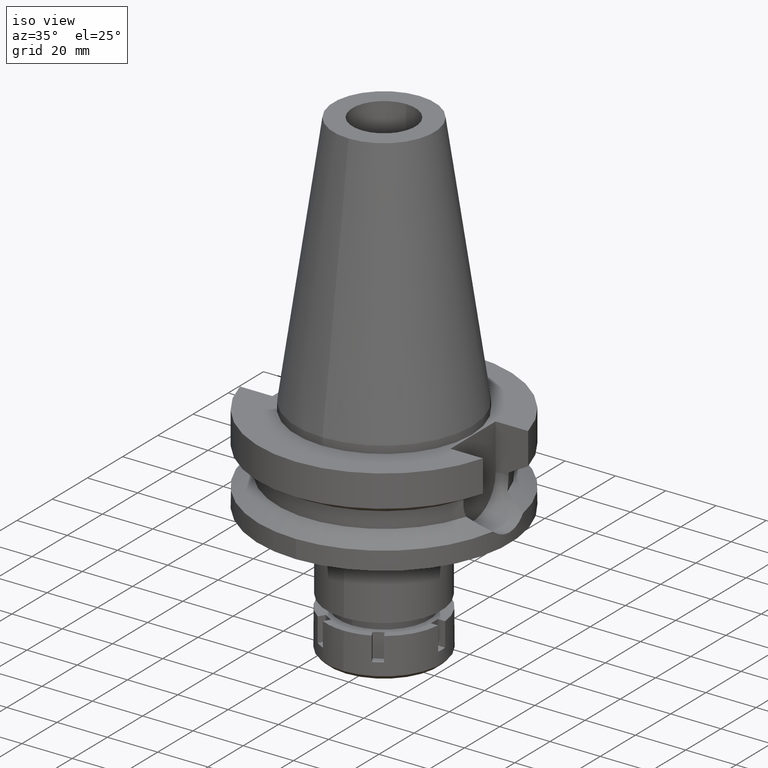
[diagram: clean part render]
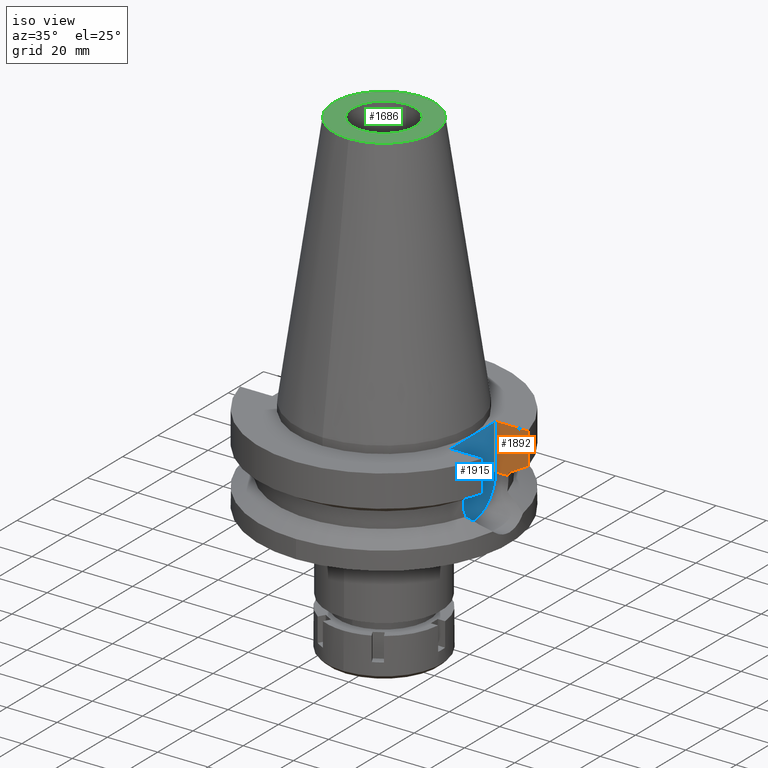
[diagram: same view with three faces highlighted in distinct colors, each labeled with its STEP entity id]
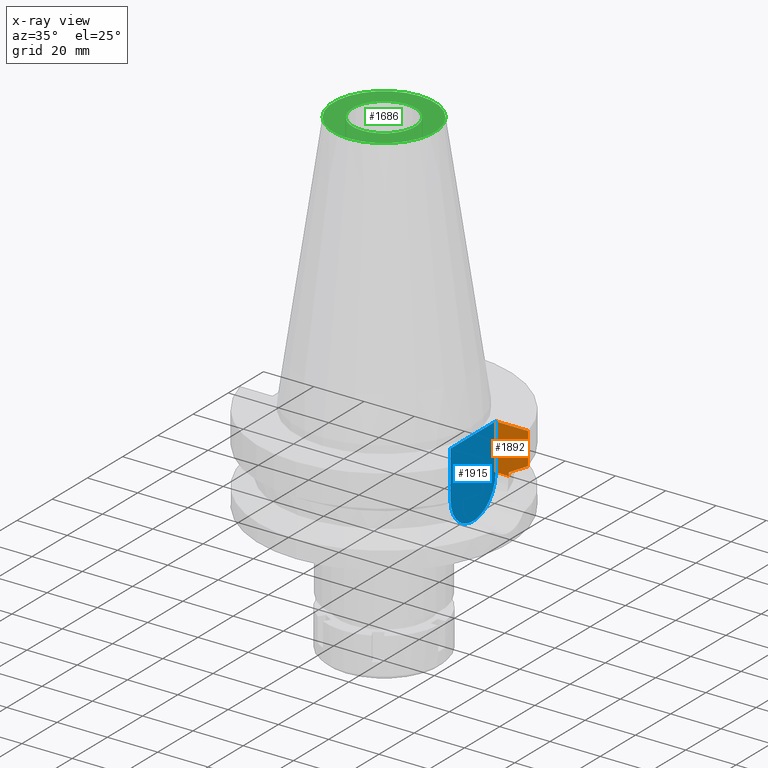
[diagram: x-ray of the same camera — body ghosted, the three highlighted faces saturated]
A machine part, iso view with three faces highlighted in distinct colors.
The next image is the same camera in x-ray (body ghosted, the three faces saturated) — at least one of them is partly hidden behind the body in this view.
Their STEP definitions:

[orange] entity #1892 — the highlighted planar face has unit normal (0, 1, 0).
#23 = CARTESIAN_POINT ( 'NONE',  ( 40.51083188481999997, 12.84999999999999964, -21.14999999999999858 ) ) ;
#275 = LINE ( 'NONE', #2506, #2781 ) ;
#347 = DIRECTION ( 'NONE',  ( 0.0000000000000000000, 0.0000000000000000000, -1.000000000000000000 ) ) ;
#448 = CARTESIAN_POINT ( 'NONE',  ( 48.32057015392000210, 12.84999999999999964, -3.000000000000000000 ) ) ;
#482 = LINE ( 'NONE', #2731, #3072 ) ;
#519 = VECTOR ( 'NONE', #347, 1000.000000000000000 ) ;
#537 = AXIS2_PLACEMENT_3D ( 'NONE', #2630, #640, #954 ) ;
#635 = VERTEX_POINT ( 'NONE', #926 ) ;
#640 = DIRECTION ( 'NONE',  ( -0.0000000000000000000, 1.000000000000000000, 0.0000000000000000000 ) ) ;
#834 = VECTOR ( 'NONE', #2451, 1000.000000000000000 ) ;
#900 = CARTESIAN_POINT ( 'NONE',  ( 45.51179786140243522, 12.85000766709870135, -17.22986770917934152 ) ) ;
#926 = CARTESIAN_POINT ( 'NONE',  ( 40.51083188481999997, 12.84999999999999964, -21.14999999999999858 ) ) ;
#954 = DIRECTION ( 'NONE',  ( 1.000000000000000000, 0.0000000000000000000, 0.0000000000000000000 ) ) ;
#1012 = VECTOR ( 'NONE', #2806, 1000.000000000000000 ) ;
#1312 = ORIENTED_EDGE ( 'NONE', *, *, #1734, .T. ) ;
#1354 = EDGE_LOOP ( 'NONE', ( #2662, #3567, #2334, #1426, #1312, #2218 ) ) ;
#1426 = ORIENTED_EDGE ( 'NONE', *, *, #3443, .T. ) ;
#1499 = LINE ( 'NONE', #2649, #519 ) ;
#1535 = VERTEX_POINT ( 'NONE', #448 ) ;
#1619 = B_SPLINE_CURVE_WITH_KNOTS ( 'NONE', 3,
 ( #1741, #900, #3123, #2107 ),
 .UNSPECIFIED., .F., .F.,
 ( 4, 4 ),
 ( 0.0000000000000000000, 1.000000000000000000 ),
 .UNSPECIFIED. ) ;
#1699 = VERTEX_POINT ( 'NONE', #3579 ) ;
#1734 = EDGE_CURVE ( 'NONE', #1753, #635, #3545, .T. ) ;
#1741 = CARTESIAN_POINT ( 'NONE',  ( 48.32056913384000296, 12.85000383585999906, -15.66265787441999890 ) ) ;
#1753 = VERTEX_POINT ( 'NONE', #3563 ) ;
#1892 = ADVANCED_FACE ( 'NONE', ( #3202 ), #2007, .F. ) ;
#1952 = VERTEX_POINT ( 'NONE', #2327 ) ;
#2007 = PLANE ( 'NONE',  #537 ) ;
#2107 = CARTESIAN_POINT ( 'NONE',  ( 40.51083300056000525, 12.84999648251999993, -19.99284624891000206 ) ) ;
#2110 = EDGE_CURVE ( 'NONE', #1952, #1535, #482, .T. ) ;
#2218 = ORIENTED_EDGE ( 'NONE', *, *, #2792, .T. ) ;
#2257 = EDGE_CURVE ( 'NONE', #1699, #1535, #275, .T. ) ;
#2327 = CARTESIAN_POINT ( 'NONE',  ( 48.32056913384000296, 12.85000383585999906, -15.66265787441999890 ) ) ;
#2334 = ORIENTED_EDGE ( 'NONE', *, *, #2257, .F. ) ;
#2338 = EDGE_CURVE ( 'NONE', #1952, #3325, #1619, .T. ) ;
#2451 = DIRECTION ( 'NONE',  ( 1.000000000000000000, -3.336643826789999529E-14, 0.0000000000000000000 ) ) ;
#2481 = CARTESIAN_POINT ( 'NONE',  ( 35.39999999999999858, 12.84999999999999964, -21.14999999999999858 ) ) ;
#2506 = CARTESIAN_POINT ( 'NONE',  ( 35.39999999999999858, 12.84999999999999964, -3.000000000000000000 ) ) ;
#2513 = LINE ( 'NONE', #23, #1012 ) ;
#2595 = CARTESIAN_POINT ( 'NONE',  ( 40.51083300056000525, 12.84999648251999993, -19.99284624891000206 ) ) ;
#2630 = CARTESIAN_POINT ( 'NONE',  ( 35.39999999999999858, 12.84999999999999964, -21.14999999999999858 ) ) ;
#2649 = CARTESIAN_POINT ( 'NONE',  ( 35.39999999999999858, 12.84999999999999964, -3.000000000000000000 ) ) ;
#2662 = ORIENTED_EDGE ( 'NONE', *, *, #2338, .F. ) ;
#2731 = CARTESIAN_POINT ( 'NONE',  ( 48.32056913384000296, 12.85000383585999906, -15.66265787441999890 ) ) ;
#2781 = VECTOR ( 'NONE', #3354, 1000.000000000000000 ) ;
#2792 = EDGE_CURVE ( 'NONE', #635, #3325, #2513, .T. ) ;
#2806 = DIRECTION ( 'NONE',  ( 9.642122151655148610E-07, -3.039772167059045013E-06, 0.9999999999949150675 ) ) ;
#3072 = VECTOR ( 'NONE', #3243, 1000.000000000000114 ) ;
#3123 = CARTESIAN_POINT ( 'NONE',  ( 42.90862369218401540, 12.84999295787632256, -18.67324849511757634 ) ) ;
#3202 = FACE_OUTER_BOUND ( 'NONE', #1354, .T. ) ;
#3243 = DIRECTION ( 'NONE',  ( 8.055814647628599031E-08, -3.029270867165849940E-07, 0.9999999999999509281 ) ) ;
#3325 = VERTEX_POINT ( 'NONE', #2595 ) ;
#3354 = DIRECTION ( 'NONE',  ( 1.000000000000000000, 0.0000000000000000000, 0.0000000000000000000 ) ) ;
#3443 = EDGE_CURVE ( 'NONE', #1699, #1753, #1499, .T. ) ;
#3545 = LINE ( 'NONE', #2481, #834 ) ;
#3563 = CARTESIAN_POINT ( 'NONE',  ( 35.39999999999999858, 12.84999999999999964, -21.14999999999999858 ) ) ;
#3567 = ORIENTED_EDGE ( 'NONE', *, *, #2110, .T. ) ;
#3579 = CARTESIAN_POINT ( 'NONE',  ( 35.39999999999999858, 12.84999999999999964, -3.000000000000000000 ) ) ;

[blue] entity #1915 — the highlighted planar face has unit normal (1, 0, 0).
#148 = DIRECTION ( 'NONE',  ( 0.0000000000000000000, 1.000000000000000000, 0.0000000000000000000 ) ) ;
#167 = VERTEX_POINT ( 'NONE', #2109 ) ;
#347 = DIRECTION ( 'NONE',  ( 0.0000000000000000000, 0.0000000000000000000, -1.000000000000000000 ) ) ;
#380 = DIRECTION ( 'NONE',  ( 0.0000000000000000000, 0.0000000000000000000, 1.000000000000000000 ) ) ;
#519 = VECTOR ( 'NONE', #347, 1000.000000000000000 ) ;
#601 = DIRECTION ( 'NONE',  ( 0.0000000000000000000, -1.000000000000000000, 0.0000000000000000000 ) ) ;
#625 = PLANE ( 'NONE',  #3122 ) ;
#663 = DIRECTION ( 'NONE',  ( 0.0000000000000000000, 1.000000000000000000, 0.0000000000000000000 ) ) ;
#682 = DIRECTION ( 'NONE',  ( -1.000000000000000000, 0.0000000000000000000, 0.0000000000000000000 ) ) ;
#908 = ORIENTED_EDGE ( 'NONE', *, *, #3443, .F. ) ;
#938 = EDGE_CURVE ( 'NONE', #1753, #1095, #2486, .T. ) ;
#1095 = VERTEX_POINT ( 'NONE', #3028 ) ;
#1164 = LINE ( 'NONE', #1525, #1242 ) ;
#1169 = DIRECTION ( 'NONE',  ( 1.000000000000000000, 0.0000000000000000000, 0.0000000000000000000 ) ) ;
#1242 = VECTOR ( 'NONE', #601, 1000.000000000000000 ) ;
#1494 = EDGE_CURVE ( 'NONE', #1095, #167, #3167, .T. ) ;
#1499 = LINE ( 'NONE', #2649, #519 ) ;
#1525 = CARTESIAN_POINT ( 'NONE',  ( 35.39999999999999858, 12.84999999999999964, -3.000000000000000000 ) ) ;
#1616 = ORIENTED_EDGE ( 'NONE', *, *, #2386, .T. ) ;
#1699 = VERTEX_POINT ( 'NONE', #3579 ) ;
#1753 = VERTEX_POINT ( 'NONE', #3563 ) ;
#1765 = FACE_OUTER_BOUND ( 'NONE', #1854, .T. ) ;
#1854 = EDGE_LOOP ( 'NONE', ( #3370, #2000, #908, #1616 ) ) ;
#1915 = ADVANCED_FACE ( 'NONE', ( #1765 ), #625, .T. ) ;
#2000 = ORIENTED_EDGE ( 'NONE', *, *, #938, .F. ) ;
#2084 = CARTESIAN_POINT ( 'NONE',  ( 35.39999999999999858, 0.0000000000000000000, -21.14999999999999858 ) ) ;
#2109 = CARTESIAN_POINT ( 'NONE',  ( 35.39999999999999858, -12.84999999999999964, -3.000000000000000000 ) ) ;
#2248 = VECTOR ( 'NONE', #380, 1000.000000000000000 ) ;
#2386 = EDGE_CURVE ( 'NONE', #1699, #167, #1164, .T. ) ;
#2486 = CIRCLE ( 'NONE', #3073, 12.84999999999999964 ) ;
#2649 = CARTESIAN_POINT ( 'NONE',  ( 35.39999999999999858, 12.84999999999999964, -3.000000000000000000 ) ) ;
#2893 = CARTESIAN_POINT ( 'NONE',  ( 35.39999999999999858, -12.84999999999999964, -21.14999999999999858 ) ) ;
#3028 = CARTESIAN_POINT ( 'NONE',  ( 35.39999999999999858, -12.84999999999999964, -21.14999999999999858 ) ) ;
#3073 = AXIS2_PLACEMENT_3D ( 'NONE', #2084, #682, #148 ) ;
#3122 = AXIS2_PLACEMENT_3D ( 'NONE', #3183, #1169, #663 ) ;
#3167 = LINE ( 'NONE', #2893, #2248 ) ;
#3183 = CARTESIAN_POINT ( 'NONE',  ( 35.39999999999999858, 0.0000000000000000000, 0.0000000000000000000 ) ) ;
#3370 = ORIENTED_EDGE ( 'NONE', *, *, #1494, .F. ) ;
#3443 = EDGE_CURVE ( 'NONE', #1699, #1753, #1499, .T. ) ;
#3563 = CARTESIAN_POINT ( 'NONE',  ( 35.39999999999999858, 12.84999999999999964, -21.14999999999999858 ) ) ;
#3579 = CARTESIAN_POINT ( 'NONE',  ( 35.39999999999999858, 12.84999999999999964, -3.000000000000000000 ) ) ;

[green] entity #1686 — the highlighted planar face has unit normal (0, 0, -1).
#22 = EDGE_LOOP ( 'NONE', ( #1665, #733 ) ) ;
#173 = CARTESIAN_POINT ( 'NONE',  ( 0.0000000000000000000, -12.50000000000000000, 101.7999999999999972 ) ) ;
#176 = CARTESIAN_POINT ( 'NONE',  ( 0.0000000000000000000, 20.07942971896000017, 101.7999999999999972 ) ) ;
#181 = VERTEX_POINT ( 'NONE', #173 ) ;
#546 = CIRCLE ( 'NONE', #2135, 20.07942971896000017 ) ;
#568 = ORIENTED_EDGE ( 'NONE', *, *, #1917, .F. ) ;
#681 = DIRECTION ( 'NONE',  ( 0.0000000000000000000, 0.0000000000000000000, 1.000000000000000000 ) ) ;
#733 = ORIENTED_EDGE ( 'NONE', *, *, #1958, .F. ) ;
#747 = FACE_OUTER_BOUND ( 'NONE', #22, .T. ) ;
#871 = EDGE_CURVE ( 'NONE', #1991, #903, #546, .T. ) ;
#903 = VERTEX_POINT ( 'NONE', #2103 ) ;
#918 = DIRECTION ( 'NONE',  ( 0.0000000000000000000, 0.0000000000000000000, -1.000000000000000000 ) ) ;
#1003 = CIRCLE ( 'NONE', #1529, 12.50000000000000000 ) ;
#1023 = PLANE ( 'NONE',  #2779 ) ;
#1059 = DIRECTION ( 'NONE',  ( 0.0000000000000000000, -1.000000000000000000, 0.0000000000000000000 ) ) ;
#1252 = CARTESIAN_POINT ( 'NONE',  ( 0.0000000000000000000, 2.583882281520999630E-14, 101.7999999999999972 ) ) ;
#1293 = DIRECTION ( 'NONE',  ( 0.0000000000000000000, 0.0000000000000000000, -1.000000000000000000 ) ) ;
#1301 = CIRCLE ( 'NONE', #3365, 20.07942971896000017 ) ;
#1369 = AXIS2_PLACEMENT_3D ( 'NONE', #1252, #681, #1487 ) ;
#1373 = FACE_BOUND ( 'NONE', #2764, .T. ) ;
#1487 = DIRECTION ( 'NONE',  ( 0.0000000000000000000, -1.000000000000000000, 0.0000000000000000000 ) ) ;
#1529 = AXIS2_PLACEMENT_3D ( 'NONE', #1729, #2079, #2307 ) ;
#1665 = ORIENTED_EDGE ( 'NONE', *, *, #871, .F. ) ;
#1686 = ADVANCED_FACE ( 'NONE', ( #747, #1373 ), #1023, .F. ) ;
#1729 = CARTESIAN_POINT ( 'NONE',  ( 0.0000000000000000000, 2.583882281520999630E-14, 101.7999999999999972 ) ) ;
#1756 = DIRECTION ( 'NONE',  ( 0.0000000000000000000, 0.0000000000000000000, -1.000000000000000000 ) ) ;
#1917 = EDGE_CURVE ( 'NONE', #3264, #181, #1003, .T. ) ;
#1958 = EDGE_CURVE ( 'NONE', #903, #1991, #1301, .T. ) ;
#1991 = VERTEX_POINT ( 'NONE', #176 ) ;
#2043 = DIRECTION ( 'NONE',  ( 0.0000000000000000000, -1.000000000000000000, 0.0000000000000000000 ) ) ;
#2079 = DIRECTION ( 'NONE',  ( 0.0000000000000000000, 0.0000000000000000000, 1.000000000000000000 ) ) ;
#2103 = CARTESIAN_POINT ( 'NONE',  ( 0.0000000000000000000, -20.07942971896000017, 101.7999999999999972 ) ) ;
#2135 = AXIS2_PLACEMENT_3D ( 'NONE', #3228, #1756, #2603 ) ;
#2307 = DIRECTION ( 'NONE',  ( 0.0000000000000000000, 1.000000000000000000, 0.0000000000000000000 ) ) ;
#2505 = ORIENTED_EDGE ( 'NONE', *, *, #2919, .F. ) ;
#2547 = CARTESIAN_POINT ( 'NONE',  ( 0.0000000000000000000, 12.50000000000000000, 101.7999999999999972 ) ) ;
#2603 = DIRECTION ( 'NONE',  ( 0.0000000000000000000, 1.000000000000000000, 0.0000000000000000000 ) ) ;
#2764 = EDGE_LOOP ( 'NONE', ( #568, #2505 ) ) ;
#2779 = AXIS2_PLACEMENT_3D ( 'NONE', #3066, #1293, #1059 ) ;
#2919 = EDGE_CURVE ( 'NONE', #181, #3264, #3074, .T. ) ;
#3066 = CARTESIAN_POINT ( 'NONE',  ( 0.0000000000000000000, 2.471337240678999545E-14, 101.7999999999999972 ) ) ;
#3074 = CIRCLE ( 'NONE', #1369, 12.50000000000000000 ) ;
#3228 = CARTESIAN_POINT ( 'NONE',  ( 0.0000000000000000000, 1.847992019912999597E-14, 101.7999999999999972 ) ) ;
#3264 = VERTEX_POINT ( 'NONE', #2547 ) ;
#3365 = AXIS2_PLACEMENT_3D ( 'NONE', #3446, #918, #2043 ) ;
#3446 = CARTESIAN_POINT ( 'NONE',  ( 0.0000000000000000000, 1.847992019912999597E-14, 101.7999999999999972 ) ) ;